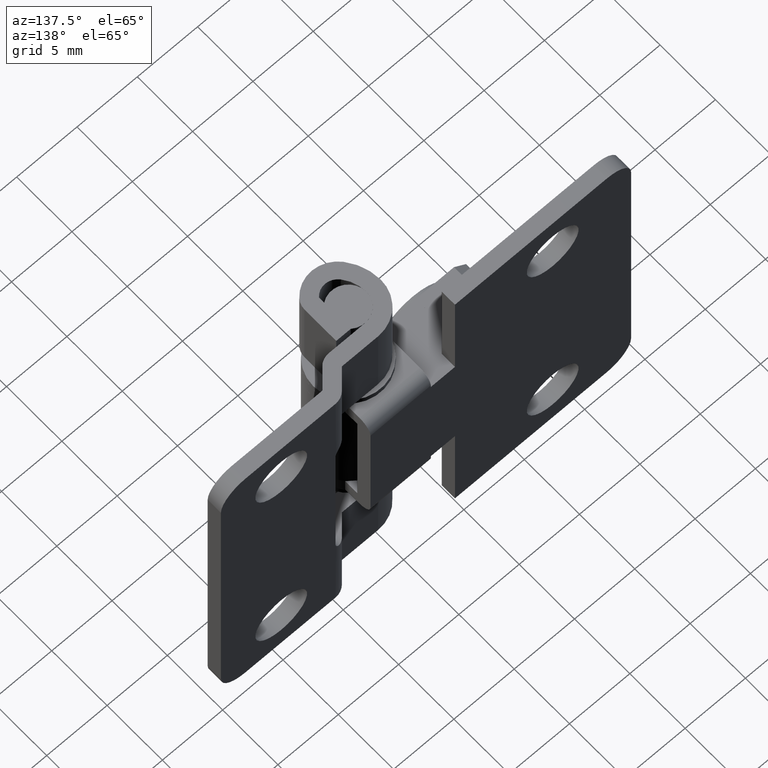
[diagram: clean part render]
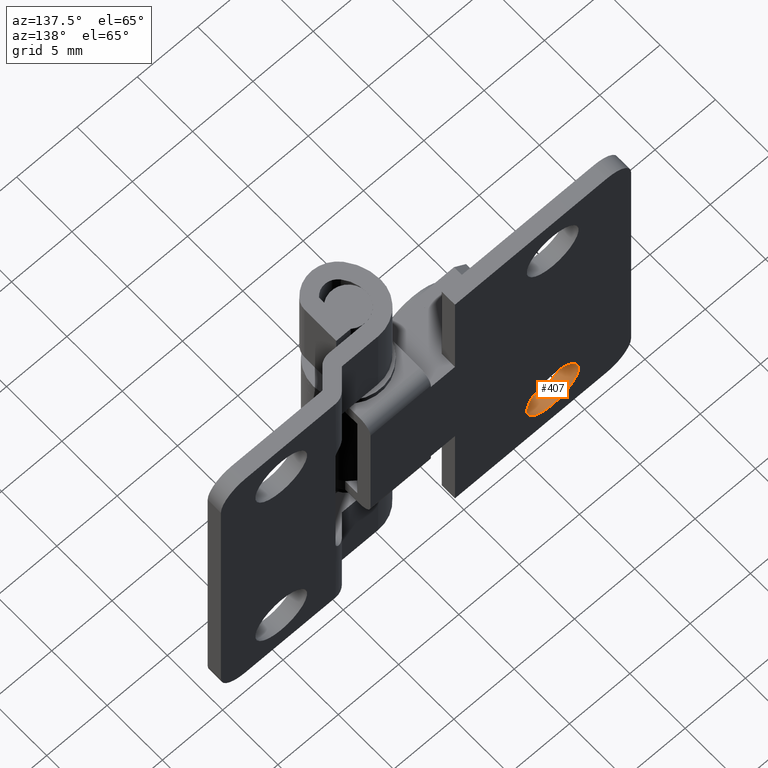
[diagram: same view with one face highlighted and labeled with its STEP entity id]
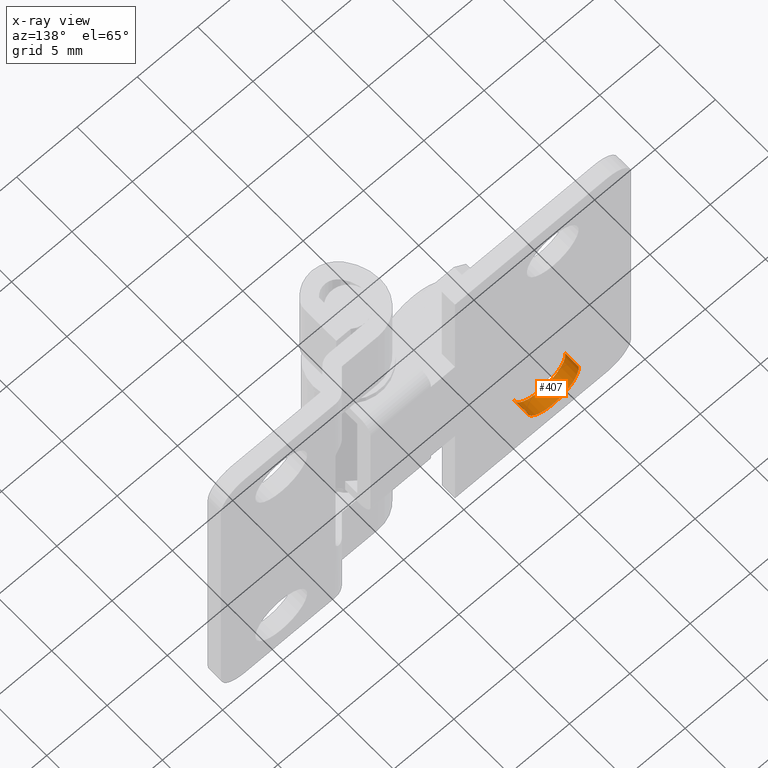
[diagram: x-ray of the same camera — body ghosted, the highlighted face saturated]
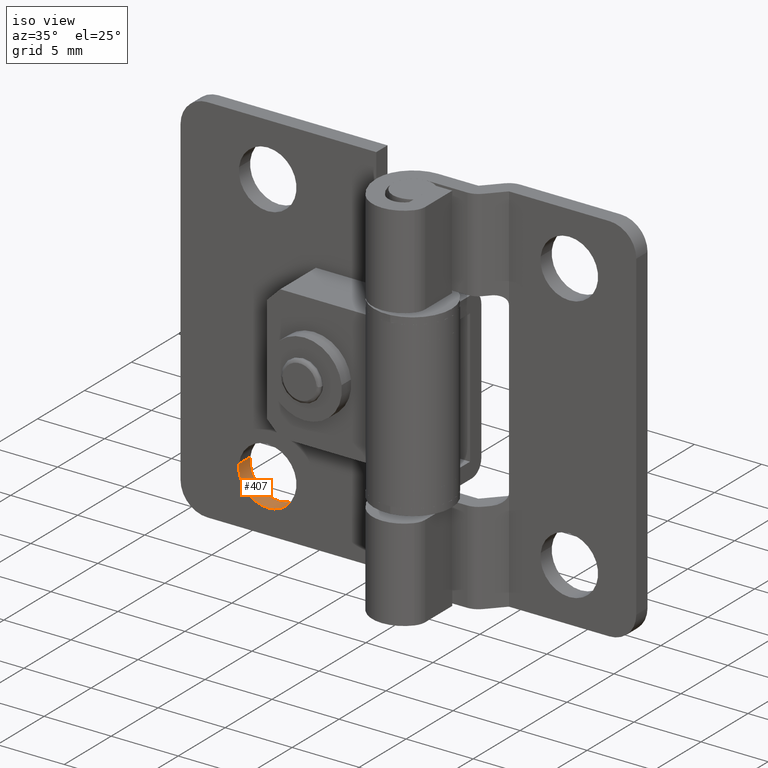
[diagram: same view with one face highlighted and labeled with its STEP entity id]
A machine part, auxiliary view. The second image highlights one B-rep face of the part: STEP entity #407.
The next image is the same camera in x-ray: the body ghosted, the highlighted face saturated — about 0% of this face is hidden behind the body in this view.
A second angle (iso view) of the same face is appended — the face is thin or edge-on in the first view.
In plain terms, the highlighted cylindrical surface (edge-blend (fillet) strip) has radius 2.15 mm, axis along (0, 1, 0).
Its self-contained STEP definition (entity closure, byte-faithful):
#407=ADVANCED_FACE('',(#1136),#1135,.F.);
#1135=CYLINDRICAL_SURFACE('',#2296,2.15000000000E+00);
#1136=FACE_OUTER_BOUND('',#2297,.T.);
#2293=CARTESIAN_POINT('',(-1.30000000000E+01,4.33000000000E+00,4.00000000000E+00));
#2294=DIRECTION('',(9.77056203395E-16,1.00000000000E+00,9.96981292797E-15));
#2295=DIRECTION('',(9.93009526364E-01,2.06553120860E-16,-1.18034234657E-01));
#2296=AXIS2_PLACEMENT_3D('',#2293,#2294,#2295);
#2297=EDGE_LOOP('',(#3027,#3028,#3029,#3030));
#3027=ORIENTED_EDGE('',*,*,#3606,.T.);
#3028=ORIENTED_EDGE('',*,*,#3628,.T.);
#3029=ORIENTED_EDGE('',*,*,#3597,.F.);
#3030=ORIENTED_EDGE('',*,*,#3629,.F.);
#3597=EDGE_CURVE('',#4887,#4894,#4895,.T.);
#3606=EDGE_CURVE('',#4956,#4948,#4957,.T.);
#3628=EDGE_CURVE('',#4948,#4894,#5099,.T.);
#3629=EDGE_CURVE('',#4956,#4887,#5105,.T.);
#4887=VERTEX_POINT('',#7087);
#4894=VERTEX_POINT('',#7092);
#4895=CIRCLE('',#7096,2.15000000000E+00);
#4948=VERTEX_POINT('',#7127);
#4956=VERTEX_POINT('',#7133);
#4957=CIRCLE('',#7137,2.15000000000E+00);
#5099=(BOUNDED_CURVE() B_SPLINE_CURVE(1,(#7216,#7217),.UNSPECIFIED.,.F.,.F.) B_SPLINE_CURVE_WITH_KNOTS((2,2),(8.33333134656E-02,9.16666653270E-01),.UNSPECIFIED.) CURVE() GEOMETRIC_REPRESENTATION_ITEM() RATIONAL_B_SPLINE_CURVE((1.00000000000E+00,1.00000000000E+00)) REPRESENTATION_ITEM('') );
#5105=(BOUNDED_CURVE() B_SPLINE_CURVE(1,(#7218,#7219),.UNSPECIFIED.,.F.,.F.) B_SPLINE_CURVE_WITH_KNOTS((2,2),(8.33333333334E-02,9.16666666667E-01),.UNSPECIFIED.) CURVE() GEOMETRIC_REPRESENTATION_ITEM() RATIONAL_B_SPLINE_CURVE((7.50000000000E-01,7.50000000000E-01)) REPRESENTATION_ITEM('') );
#7087=CARTESIAN_POINT('',(-1.51349265884E+01,4.30000000000E+00,4.25414260158E+00));
#7092=CARTESIAN_POINT('',(-1.08650294255E+01,4.30000000000E+00,3.74622717623E+00));
#7093=CARTESIAN_POINT('',(-1.30000000000E+01,4.30000000000E+00,4.00000000000E+00));
#7094=DIRECTION('',(-5.17847682491E-15,-1.00000000000E+00,-3.30663931591E-14));
#7095=DIRECTION('',(2.67702526813E-14,-3.30663931591E-14,1.00000000000E+00));
#7096=AXIS2_PLACEMENT_3D('',#7093,#7094,#7095);
#7127=CARTESIAN_POINT('',(-1.08650294255E+01,3.10000000000E+00,3.74622717623E+00));
#7133=CARTESIAN_POINT('',(-1.51349265884E+01,3.10000000000E+00,4.25414260158E+00));
#7134=CARTESIAN_POINT('',(-1.30000000000E+01,3.10000000000E+00,4.00000000000E+00));
#7135=DIRECTION('',(3.81030245150E-16,-1.00000000000E+00,4.95551994375E-15));
#7136=DIRECTION('',(2.27179386414E-14,4.95551994375E-15,1.00000000000E+00));
#7137=AXIS2_PLACEMENT_3D('',#7134,#7135,#7136);
#7216=CARTESIAN_POINT('',(-1.08650295183E+01,3.09999997139E+00,3.74622639549E+00));
#7217=CARTESIAN_POINT('',(-1.08650295183E+01,4.29999998071E+00,3.74622639549E+00));
#7218=CARTESIAN_POINT('',(-1.51349704817E+01,3.10000000000E+00,4.25377360451E+00));
#7219=CARTESIAN_POINT('',(-1.51349704817E+01,4.30000000000E+00,4.25377360451E+00));